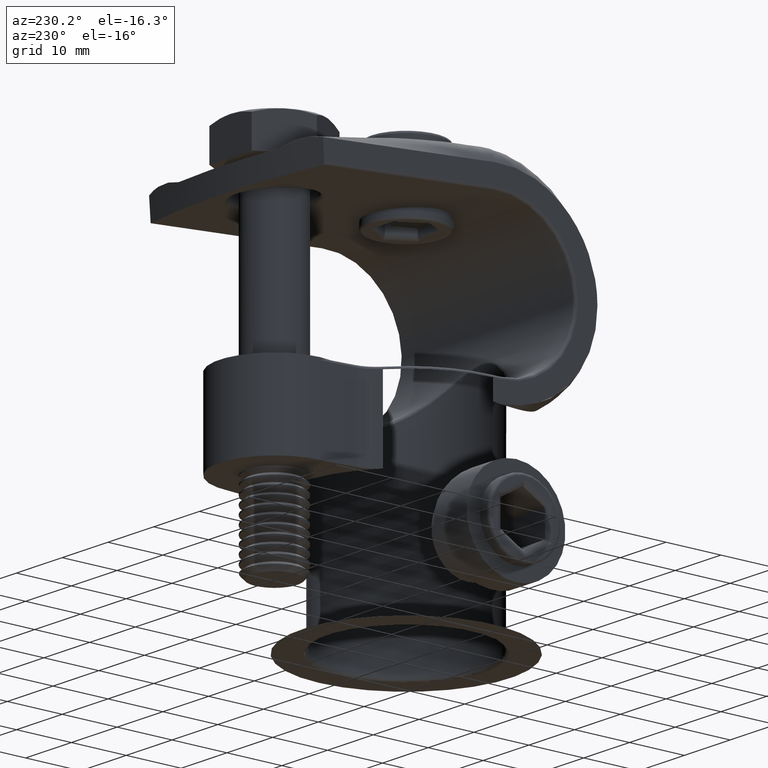
[diagram: clean part render]
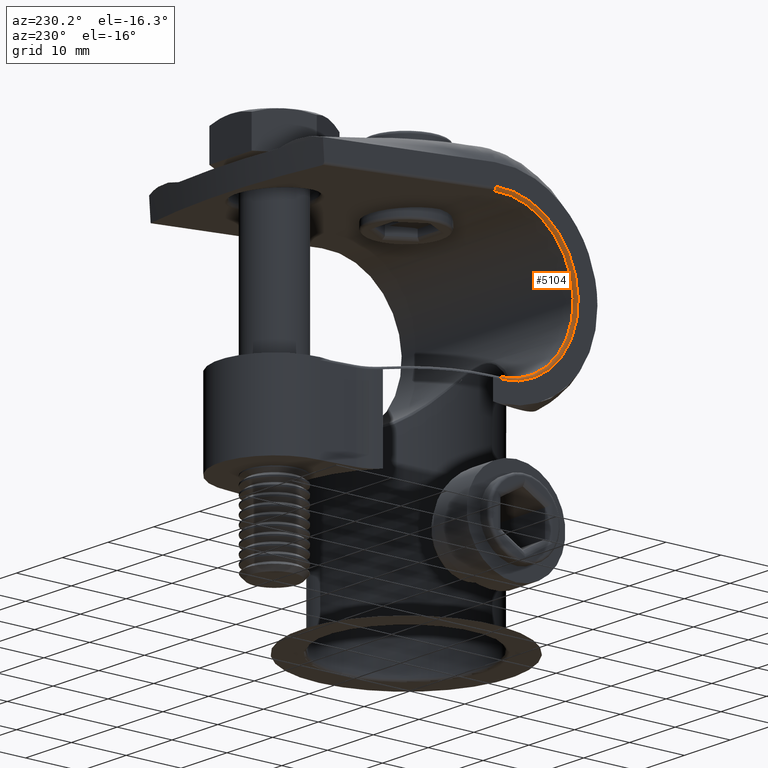
[diagram: same view with one face highlighted and labeled with its STEP entity id]
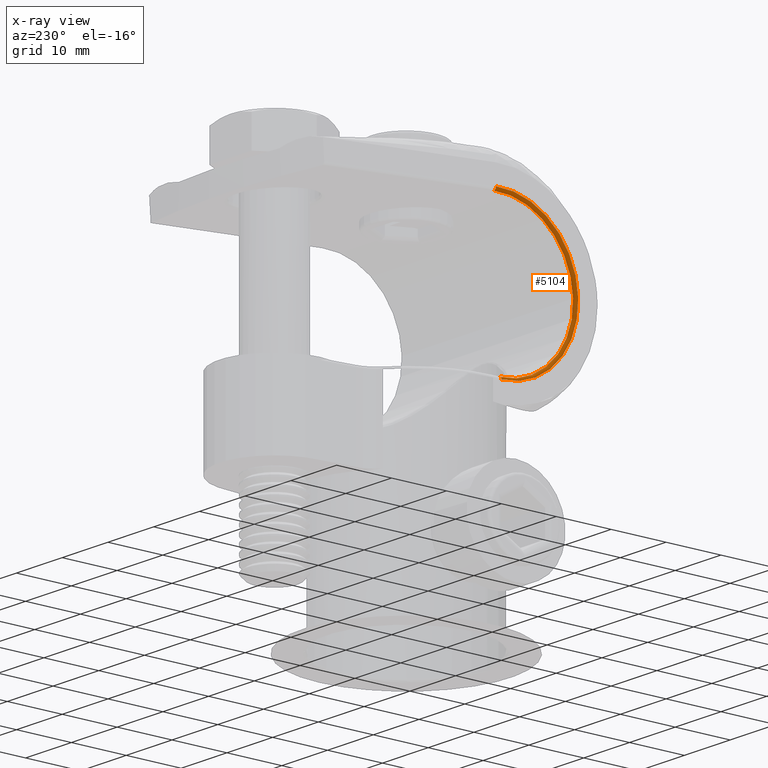
[diagram: x-ray of the same camera — body ghosted, the highlighted face saturated]
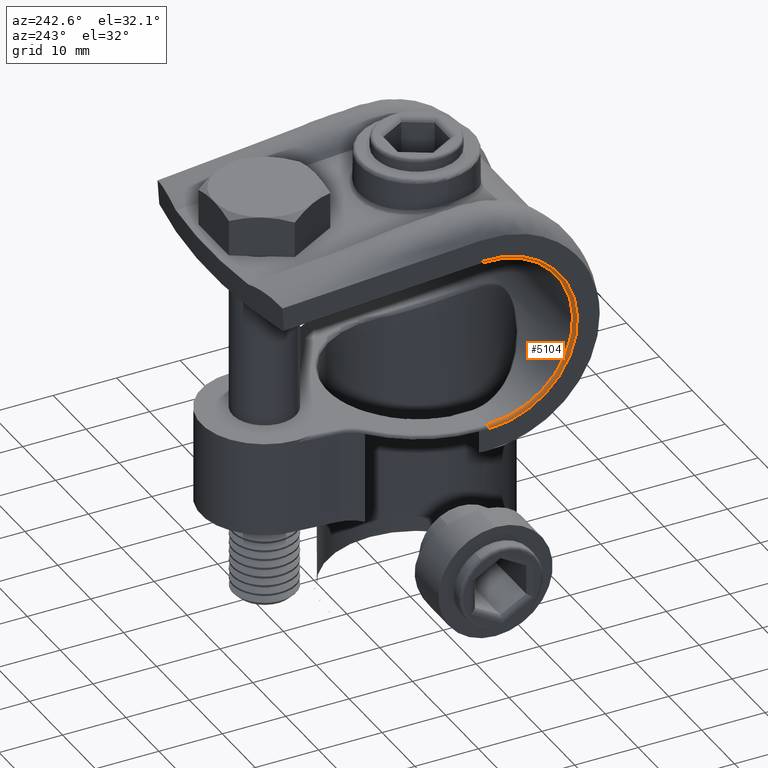
[diagram: same view with one face highlighted and labeled with its STEP entity id]
A machine part, auxiliary view. The second image highlights one B-rep face of the part: STEP entity #5104.
The next image is the same camera in x-ray: the body ghosted, the highlighted face saturated — about 0% of this face is hidden behind the body in this view.
A second angle (auxiliary view) of the same face is appended — the face is thin or edge-on in the first view.
In plain terms, the highlighted toroidal blend (fillet) surface has major radius 14 mm and minor (blend) radius 0.5 mm.
Its self-contained STEP definition (entity closure, byte-faithful):
#38 = CIRCLE ( 'NONE', #4311, 0.5000000000000004441 ) ;
#100 = CARTESIAN_POINT ( 'NONE',  ( -18.50000000000000000, 18.47659063241769317, 13.96589670363754543 ) ) ;
#127 = DIRECTION ( 'NONE',  ( -1.000000000000000000, -0.000000000000000000, -0.000000000000000000 ) ) ;
#280 = CARTESIAN_POINT ( 'NONE',  ( -18.50000000000000000, 17.49999999999999645, -14.00000000000000000 ) ) ;
#289 = EDGE_LOOP ( 'NONE', ( #1943, #309, #4007, #2684 ) ) ;
#301 = VERTEX_POINT ( 'NONE', #1265 ) ;
#309 = ORIENTED_EDGE ( 'NONE', *, *, #1373, .F. ) ;
#395 = CARTESIAN_POINT ( 'NONE',  ( -19.00000000000000000, 18.47659063241769317, 13.96589670363754720 ) ) ;
#415 = CIRCLE ( 'NONE', #2043, 0.4999999999999996114 ) ;
#937 = TOROIDAL_SURFACE ( 'NONE', #1590, 14.00000000000000178, 0.5000000000000000000 ) ;
#1028 = CARTESIAN_POINT ( 'NONE',  ( -18.50000000000000000, 17.50000000000000000, 2.143131898507868248E-15 ) ) ;
#1265 = CARTESIAN_POINT ( 'NONE',  ( -19.00000000000000000, 17.49999999999999645, -14.00000000000000000 ) ) ;
#1308 = CARTESIAN_POINT ( 'NONE',  ( -19.00000000000000000, 17.50000000000000000, 2.143131898507868248E-15 ) ) ;
#1373 = EDGE_CURVE ( 'NONE', #1498, #4549, #2652, .T. ) ;
#1498 = VERTEX_POINT ( 'NONE', #3953 ) ;
#1590 = AXIS2_PLACEMENT_3D ( 'NONE', #1028, #5674, #2924 ) ;
#1617 = CARTESIAN_POINT ( 'NONE',  ( -18.50000000000000000, 17.50000000000000000, 2.143131898507868248E-15 ) ) ;
#1821 = DIRECTION ( 'NONE',  ( 0.000000000000000000, 0.000000000000000000, -1.000000000000000000 ) ) ;
#1943 = ORIENTED_EDGE ( 'NONE', *, *, #4681, .T. ) ;
#2043 = AXIS2_PLACEMENT_3D ( 'NONE', #100, #3765, #5678 ) ;
#2068 = AXIS2_PLACEMENT_3D ( 'NONE', #1617, #127, #4874 ) ;
#2320 = EDGE_CURVE ( 'NONE', #301, #1498, #38, .T. ) ;
#2652 = CIRCLE ( 'NONE', #2068, 13.50000000000000178 ) ;
#2684 = ORIENTED_EDGE ( 'NONE', *, *, #5897, .F. ) ;
#2924 = DIRECTION ( 'NONE',  ( 0.000000000000000000, 0.000000000000000000, -1.000000000000000000 ) ) ;
#3765 = DIRECTION ( 'NONE',  ( 0.000000000000000000, -0.9975640502598243087, 0.06975647374412452528 ) ) ;
#3953 = CARTESIAN_POINT ( 'NONE',  ( -18.50000000000000000, 17.49999999999999645, -13.50000000000000000 ) ) ;
#4007 = ORIENTED_EDGE ( 'NONE', *, *, #2320, .F. ) ;
#4131 = DIRECTION ( 'NONE',  ( 1.000000000000000000, 0.000000000000000000, 0.000000000000000000 ) ) ;
#4311 = AXIS2_PLACEMENT_3D ( 'NONE', #280, #5438, #5005 ) ;
#4454 = CARTESIAN_POINT ( 'NONE',  ( -18.50000000000000000, 18.44171239554562902, 13.46711467850763455 ) ) ;
#4549 = VERTEX_POINT ( 'NONE', #4454 ) ;
#4681 = EDGE_CURVE ( 'NONE', #4782, #4549, #415, .T. ) ;
#4782 = VERTEX_POINT ( 'NONE', #395 ) ;
#4811 = FACE_OUTER_BOUND ( 'NONE', #289, .T. ) ;
#4822 = AXIS2_PLACEMENT_3D ( 'NONE', #1308, #4131, #1821 ) ;
#4874 = DIRECTION ( 'NONE',  ( 0.000000000000000000, 0.000000000000000000, -1.000000000000000000 ) ) ;
#5005 = DIRECTION ( 'NONE',  ( 0.000000000000000000, 0.000000000000000000, 1.000000000000000000 ) ) ;
#5104 = ADVANCED_FACE ( 'NONE', ( #4811 ), #937, .T. ) ;
#5438 = DIRECTION ( 'NONE',  ( 0.000000000000000000, 1.000000000000000000, -0.000000000000000000 ) ) ;
#5546 = CIRCLE ( 'NONE', #4822, 14.00000000000000178 ) ;
#5674 = DIRECTION ( 'NONE',  ( 1.000000000000000000, 0.000000000000000000, 0.000000000000000000 ) ) ;
#5678 = DIRECTION ( 'NONE',  ( 0.000000000000000000, -0.06975647374412452528, -0.9975640502598243087 ) ) ;
#5897 = EDGE_CURVE ( 'NONE', #4782, #301, #5546, .T. ) ;